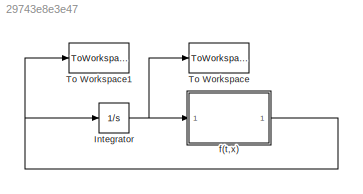
MODEL slx_29743e8e3e47
KIND model
CONFIG AbsTol = auto
CONFIG EnableMultiTasking = off
CONFIG FixedStep = .01
CONFIG MaxStep = auto
CONFIG MinStep = auto
CONFIG RelTol = 1e-3
CONFIG SampleTimeConstraint = Unconstrained
CONFIG Solver = FixedStepAuto
CONFIG SolverName = FixedStepAuto
CONFIG StartTime = 0.0
CONFIG StopTime = 10.0
BLOCK [Integrator] Integrator
  InitialCondition = x_init
  Ports = [1, 1]
BLOCK [ToWorkspace] To Workspace
  FixptAsFi = on
  MaxDataPoints = inf
  Ports = [1]
  SampleTime = -1
  SaveFormat = Structure With Time
  VariableName = x
BLOCK [ToWorkspace] To Workspace1
  FixptAsFi = on
  MaxDataPoints = inf
  Ports = [1]
  SampleTime = -1
  SaveFormat = Structure With Time
  VariableName = x_dot
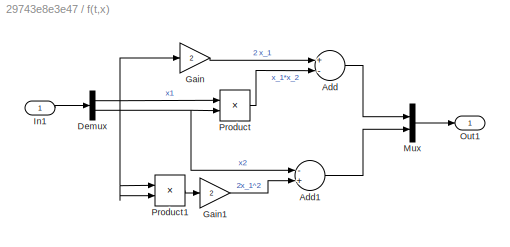
BLOCK [SubSystem] f(t,x)
  Ports = [1, 1]
  RequestExecContextInheritance = off
BLOCK [Sum] f(t,x)/Add
  InputSameDT = off
  Inputs = +-
  OutDataTypeStr = Inherit: Inherit via internal rule
  Ports = [2, 1]
  SaturateOnIntegerOverflow = off
BLOCK [Sum] f(t,x)/Add1
  InputSameDT = off
  Inputs = -+
  OutDataTypeStr = Inherit: Inherit via internal rule
  Ports = [2, 1]
  SaturateOnIntegerOverflow = off
BLOCK [Demux] f(t,x)/Demux
  DisplayOption = bar
  Outputs = 2
  Ports = [1, 2]
BLOCK [Gain] f(t,x)/Gain
  Gain = 2
  OutDataTypeStr = Inherit: Inherit via internal rule
  ParamDataTypeStr = Inherit: Inherit via internal rule
  SaturateOnIntegerOverflow = off
BLOCK [Gain] f(t,x)/Gain1
  Gain = 2
  OutDataTypeStr = Inherit: Inherit via internal rule
  ParamDataTypeStr = Inherit: Inherit via internal rule
  SaturateOnIntegerOverflow = off
BLOCK [Inport] f(t,x)/In1
  IconDisplay = Port number
BLOCK [Mux] f(t,x)/Mux
  DisplayOption = bar
  Inputs = 2
  Ports = [2, 1]
BLOCK [Outport] f(t,x)/Out1
  IconDisplay = Port number
BLOCK [Product] f(t,x)/Product
  InputSameDT = off
  OutDataTypeStr = Inherit: Inherit via internal rule
  Ports = [2, 1]
  RndMeth = Floor
  SaturateOnIntegerOverflow = off
BLOCK [Product] f(t,x)/Product1
  InputSameDT = off
  OutDataTypeStr = Inherit: Inherit via internal rule
  Ports = [2, 1]
  RndMeth = Floor
  SaturateOnIntegerOverflow = off
NET Integrator:1 -> To Workspace:1, f(t,x):1
LINE f(t,x)/Add1:1 -> f(t,x)/Mux:2
LINE f(t,x)/Add:1 -> f(t,x)/Mux:1
NET f(t,x)/Demux:1 -> f(t,x)/Gain:1, f(t,x)/Product1:1, f(t,x)/Product1:2, f(t,x)/Product:1
NET f(t,x)/Demux:2 -> f(t,x)/Add1:1, f(t,x)/Product:2
LINE f(t,x)/Gain1:1 -> f(t,x)/Add1:2
LINE f(t,x)/Gain:1 -> f(t,x)/Add:1
LINE f(t,x)/In1:1 -> f(t,x)/Demux:1
LINE f(t,x)/Mux:1 -> f(t,x)/Out1:1
LINE f(t,x)/Product1:1 -> f(t,x)/Gain1:1
LINE f(t,x)/Product:1 -> f(t,x)/Add:2
NET f(t,x):1 -> Integrator:1, To Workspace1:1
note: NET lines group one-source signal fan-out (src -> all destinations, sorted); 1:1 wires keep LINE
